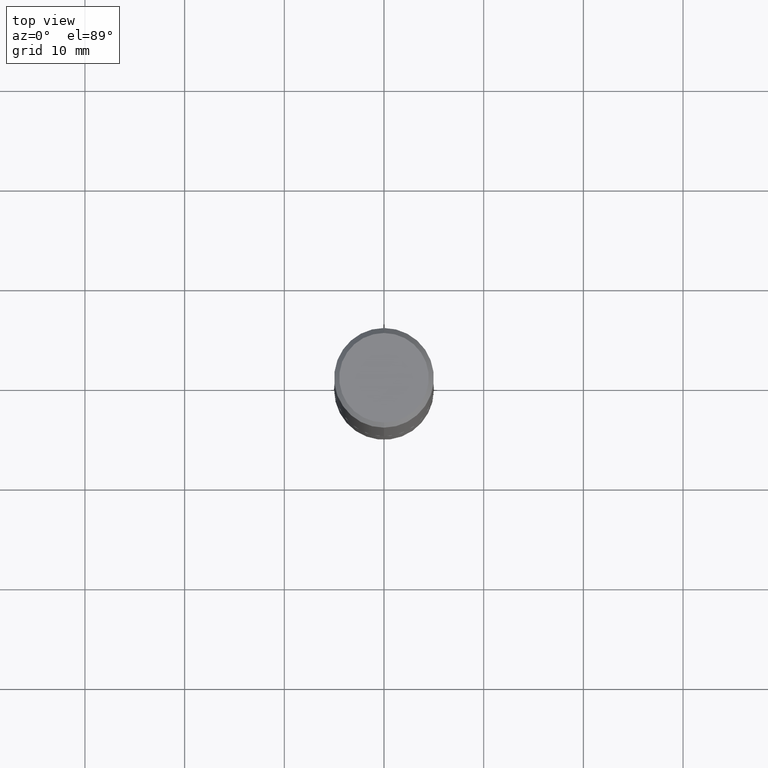
[diagram: clean part render]
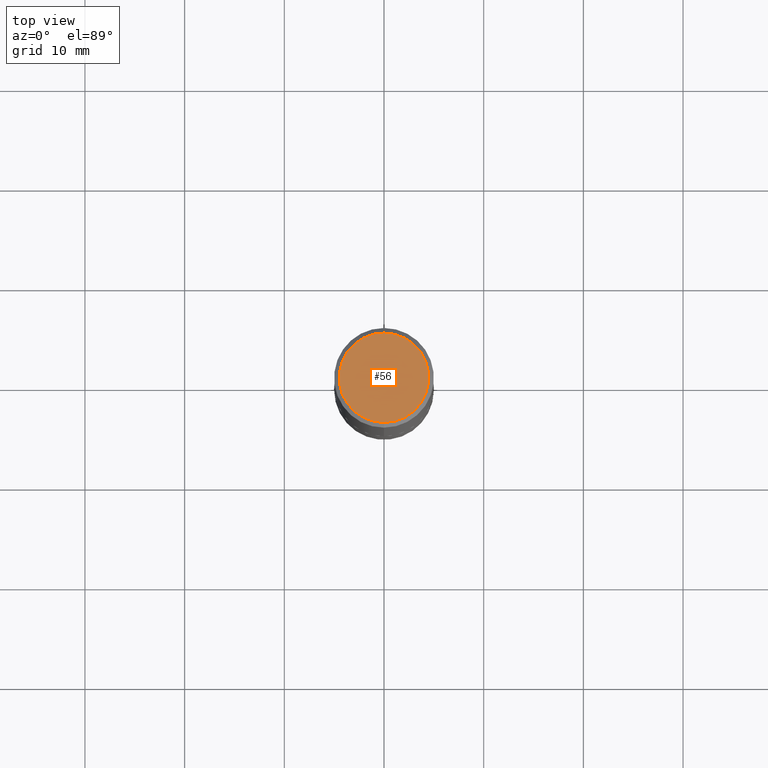
[diagram: same view with one face highlighted and labeled with its STEP entity id]
A machine part, top view. The second image highlights one B-rep face of the part: STEP entity #56.
In plain terms, the highlighted planar face has unit normal (0, -0, -1).
Its self-contained STEP definition (entity closure, byte-faithful):
#4 = CARTESIAN_POINT ( 'NONE',  ( 1.234936949548816590E-15, 0.1768500000000000627, -6.366182382972411724E-16 ) ) ;
#17 = DIRECTION ( 'NONE',  ( 6.982962677686265922E-15, 1.000000000000000000, -3.490819278536432204E-15 ) ) ;
#34 = DIRECTION ( 'NONE',  ( -2.445931120426352427E-29, 3.490819278536432204E-15, 1.000000000000000000 ) ) ;
#52 = EDGE_LOOP ( 'NONE', ( #316, #54 ) ) ;
#54 = ORIENTED_EDGE ( 'NONE', *, *, #218, .T. ) ;
#56 = ADVANCED_FACE ( 'NONE', ( #131 ), #96, .F. ) ;
#81 = AXIS2_PLACEMENT_3D ( 'NONE', #4, #298, #17 ) ;
#92 = AXIS2_PLACEMENT_3D ( 'NONE', #357, #34, #164 ) ;
#96 = PLANE ( 'NONE',  #81 ) ;
#107 = VERTEX_POINT ( 'NONE', #176 ) ;
#130 = CIRCLE ( 'NONE', #365, 0.1768500000000000627 ) ;
#131 = FACE_OUTER_BOUND ( 'NONE', #52, .T. ) ;
#164 = DIRECTION ( 'NONE',  ( -6.982962677686265922E-15, -1.000000000000000000, 3.490819278536432204E-15 ) ) ;
#176 = CARTESIAN_POINT ( 'NONE',  ( 1.304766576325679099E-15, 0.1768500000000000627, -6.558850871853143044E-16 ) ) ;
#213 = DIRECTION ( 'NONE',  ( -6.982962677686265922E-15, -1.000000000000000000, 3.490819278536432204E-15 ) ) ;
#216 = VERTEX_POINT ( 'NONE', #416 ) ;
#218 = EDGE_CURVE ( 'NONE', #216, #107, #130, .T. ) ;
#263 = DIRECTION ( 'NONE',  ( -2.445931120426352427E-29, 3.490819278536432204E-15, 1.000000000000000000 ) ) ;
#282 = CIRCLE ( 'NONE', #92, 0.1768500000000000627 ) ;
#298 = DIRECTION ( 'NONE',  ( 2.445931120426351866E-29, -3.490819278536432204E-15, -1.000000000000000000 ) ) ;
#304 = CARTESIAN_POINT ( 'NONE',  ( 9.425077057577917544E-46, -1.345141750702668251E-31, -3.853369777614598048E-17 ) ) ;
#316 = ORIENTED_EDGE ( 'NONE', *, *, #347, .T. ) ;
#347 = EDGE_CURVE ( 'NONE', #107, #216, #282, .T. ) ;
#357 = CARTESIAN_POINT ( 'NONE',  ( 9.425077057577917544E-46, -1.345141750702668251E-31, -3.853369777614598048E-17 ) ) ;
#365 = AXIS2_PLACEMENT_3D ( 'NONE', #304, #263, #213 ) ;
#416 = CARTESIAN_POINT ( 'NONE',  ( -1.281884050883610492E-15, -0.1768500000000000627, 5.788176916330222694E-16 ) ) ;